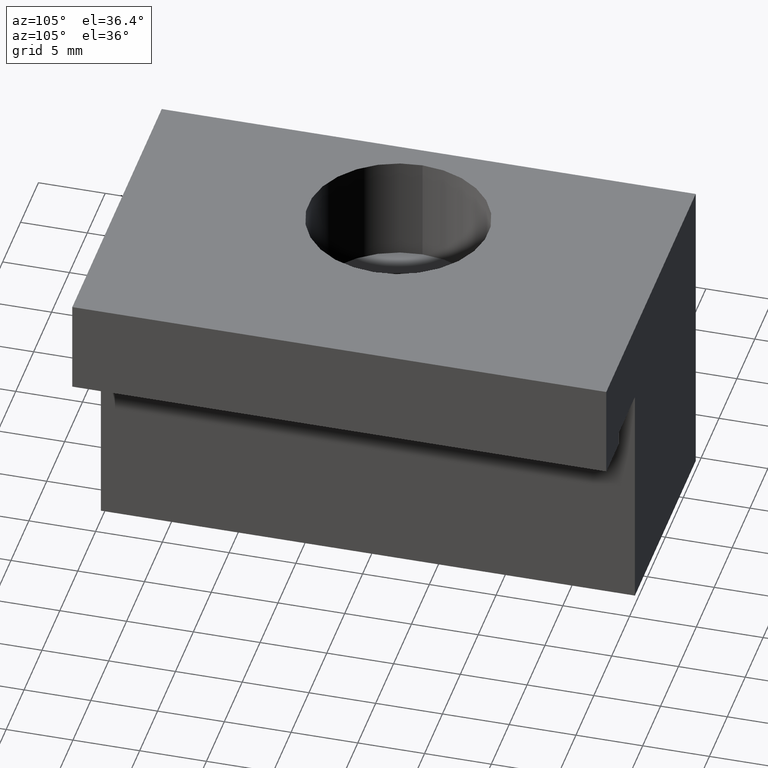
[diagram: clean part render]
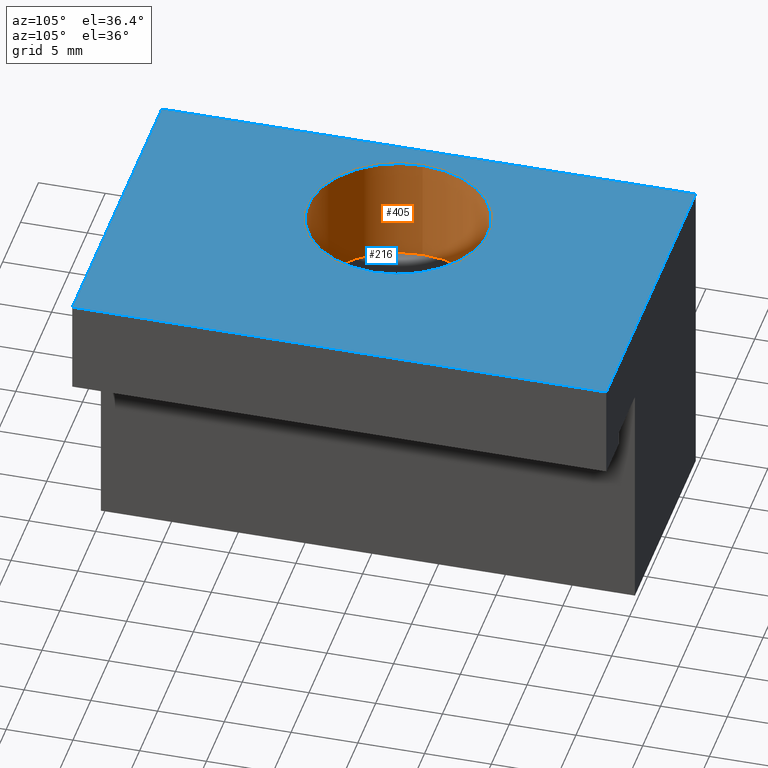
[diagram: same view with the hole feature highlighted: cylindrical wall and planar end face, labeled with their STEP entity ids]
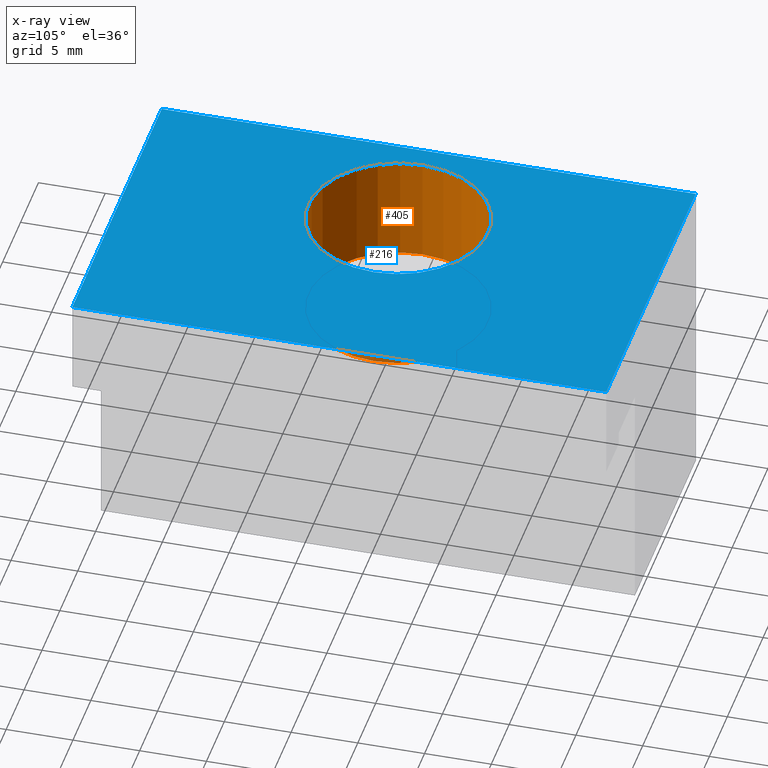
[diagram: x-ray of the same camera — body ghosted, the hole faces saturated]
A machine part, auxiliary view. The highlighted faces form one hole feature of diameter 13.5 mm: the cylindrical wall (entity #405, orange) and its adjacent planar end face (entity #216, blue) — they share a circular edge in the B-rep.
The next image is the same camera in x-ray (body ghosted, the hole faces saturated) — the bore reads through the body.
Wall:
#196=CARTESIAN_POINT('',(6.749999999974534,1.469576E-015,23.999999625544660));
#197=VERTEX_POINT('',#196);
#198=CARTESIAN_POINT('',(-6.749999999974534,1.469576E-015,23.999999625544660));
#199=VERTEX_POINT('',#198);
#200=CARTESIAN_POINT('',(0.0,1.469576E-015,23.999999625544660));
#201=DIRECTION('',(0.0,0.0,1.0));
#202=DIRECTION('',(-1.0,0.0,0.0));
#203=AXIS2_PLACEMENT_3D('',#200,#201,#202);
#204=CIRCLE('',#203,6.749999999974534);
#205=EDGE_CURVE('',#197,#199,#204,.T.);
#207=CARTESIAN_POINT('',(0.0,1.469576E-015,23.999999625544660));
#208=DIRECTION('',(0.0,0.0,1.0));
#209=DIRECTION('',(-1.0,0.0,0.0));
#210=AXIS2_PLACEMENT_3D('',#207,#208,#209);
#211=CIRCLE('',#210,6.749999999974534);
#212=EDGE_CURVE('',#199,#197,#211,.T.);
#362=CARTESIAN_POINT('',(-6.749999999974534,9.797174E-016,15.999998935351869));
#363=VERTEX_POINT('',#362);
#364=CARTESIAN_POINT('',(6.749999999974534,9.797174E-016,15.999998935351869));
#365=VERTEX_POINT('',#364);
#366=CARTESIAN_POINT('',(0.0,9.797174E-016,15.999998935351869));
#367=DIRECTION('',(0.0,0.0,1.0));
#368=DIRECTION('',(-1.0,0.0,0.0));
#369=AXIS2_PLACEMENT_3D('',#366,#367,#368);
#370=CIRCLE('',#369,6.749999999974534);
#371=EDGE_CURVE('',#363,#365,#370,.T.);
#373=CARTESIAN_POINT('',(0.0,9.797174E-016,15.999998935351869));
#374=DIRECTION('',(0.0,0.0,1.0));
#375=DIRECTION('',(-1.0,0.0,0.0));
#376=AXIS2_PLACEMENT_3D('',#373,#374,#375);
#377=CIRCLE('',#376,6.749999999974534);
#378=EDGE_CURVE('',#365,#363,#377,.T.);
#387=CARTESIAN_POINT('',(0.0,9.797174E-016,15.999998935351869));
#388=DIRECTION('',(0.0,0.0,1.0));
#389=DIRECTION('',(-1.0,0.0,0.0));
#390=AXIS2_PLACEMENT_3D('',#387,#388,#389);
#391=CYLINDRICAL_SURFACE('',#390,6.749999999974534);
#392=CARTESIAN_POINT('',(-6.749999999974534,9.797174E-016,15.999998935351869));
#393=DIRECTION('',(0.0,0.0,1.0));
#394=VECTOR('',#393,8.000000690192792);
#395=LINE('',#392,#394);
#396=EDGE_CURVE('',#363,#199,#395,.T.);
#397=ORIENTED_EDGE('',*,*,#396,.T.);
#398=ORIENTED_EDGE('',*,*,#212,.T.);
#399=ORIENTED_EDGE('',*,*,#205,.T.);
#400=ORIENTED_EDGE('',*,*,#396,.F.);
#401=ORIENTED_EDGE('',*,*,#378,.F.);
#402=ORIENTED_EDGE('',*,*,#371,.F.);
#403=EDGE_LOOP('',(#397,#398,#399,#400,#401,#402));
#404=FACE_OUTER_BOUND('',#403,.T.);
#405=ADVANCED_FACE('',(#404),#391,.F.);
End face:
#141=CARTESIAN_POINT('',(16.499999999934516,19.999999999919964,23.999999625544660));
#142=VERTEX_POINT('',#141);
#149=CARTESIAN_POINT('',(16.499999999934516,-19.999999999919964,23.999999625544660));
#150=VERTEX_POINT('',#149);
#151=CARTESIAN_POINT('',(16.499999999934516,-19.999999999919964,23.999999625544660));
#152=DIRECTION('',(0.0,1.0,0.0));
#153=VECTOR('',#152,39.999999999839929);
#154=LINE('',#151,#153);
#155=EDGE_CURVE('',#150,#142,#154,.T.);
#166=CARTESIAN_POINT('',(16.499999999934516,-19.999999999919964,23.999999625544660));
#167=DIRECTION('',(0.0,0.0,-1.0));
#168=DIRECTION('',(-1.0,0.0,0.0));
#169=AXIS2_PLACEMENT_3D('',#166,#167,#168);
#170=PLANE('',#169);
#171=ORIENTED_EDGE('',*,*,#155,.T.);
#172=CARTESIAN_POINT('',(-8.499999999967258,19.999999999919964,23.999999625544660));
#173=VERTEX_POINT('',#172);
#174=CARTESIAN_POINT('',(16.499999999934516,19.999999999919964,23.999999625544660));
#175=DIRECTION('',(-1.0,0.0,0.0));
#176=VECTOR('',#175,24.999999999901775);
#177=LINE('',#174,#176);
#178=EDGE_CURVE('',#142,#173,#177,.T.);
#179=ORIENTED_EDGE('',*,*,#178,.T.);
#180=CARTESIAN_POINT('',(-8.499999999967258,-19.999999999919964,23.999999625544660));
#181=VERTEX_POINT('',#180);
#182=CARTESIAN_POINT('',(-8.499999999967258,-19.999999999919964,23.999999625544660));
#183=DIRECTION('',(0.0,1.0,0.0));
#184=VECTOR('',#183,39.999999999839929);
#185=LINE('',#182,#184);
#186=EDGE_CURVE('',#181,#173,#185,.T.);
#187=ORIENTED_EDGE('',*,*,#186,.F.);
#188=CARTESIAN_POINT('',(16.499999999934516,-19.999999999919964,23.999999625544660));
#189=DIRECTION('',(-1.0,0.0,0.0));
#190=VECTOR('',#189,24.999999999901775);
#191=LINE('',#188,#190);
#192=EDGE_CURVE('',#150,#181,#191,.T.);
#193=ORIENTED_EDGE('',*,*,#192,.F.);
#194=EDGE_LOOP('',(#171,#179,#187,#193));
#195=FACE_OUTER_BOUND('',#194,.T.);
#196=CARTESIAN_POINT('',(6.749999999974534,1.469576E-015,23.999999625544660));
#197=VERTEX_POINT('',#196);
#198=CARTESIAN_POINT('',(-6.749999999974534,1.469576E-015,23.999999625544660));
#199=VERTEX_POINT('',#198);
#200=CARTESIAN_POINT('',(0.0,1.469576E-015,23.999999625544660));
#201=DIRECTION('',(0.0,0.0,1.0));
#202=DIRECTION('',(-1.0,0.0,0.0));
#203=AXIS2_PLACEMENT_3D('',#200,#201,#202);
#204=CIRCLE('',#203,6.749999999974534);
#205=EDGE_CURVE('',#197,#199,#204,.T.);
#206=ORIENTED_EDGE('',*,*,#205,.F.);
#207=CARTESIAN_POINT('',(0.0,1.469576E-015,23.999999625544660));
#208=DIRECTION('',(0.0,0.0,1.0));
#209=DIRECTION('',(-1.0,0.0,0.0));
#210=AXIS2_PLACEMENT_3D('',#207,#208,#209);
#211=CIRCLE('',#210,6.749999999974534);
#212=EDGE_CURVE('',#199,#197,#211,.T.);
#213=ORIENTED_EDGE('',*,*,#212,.F.);
#214=EDGE_LOOP('',(#206,#213));
#215=FACE_BOUND('',#214,.T.);
#216=ADVANCED_FACE('',(#195,#215),#170,.F.);